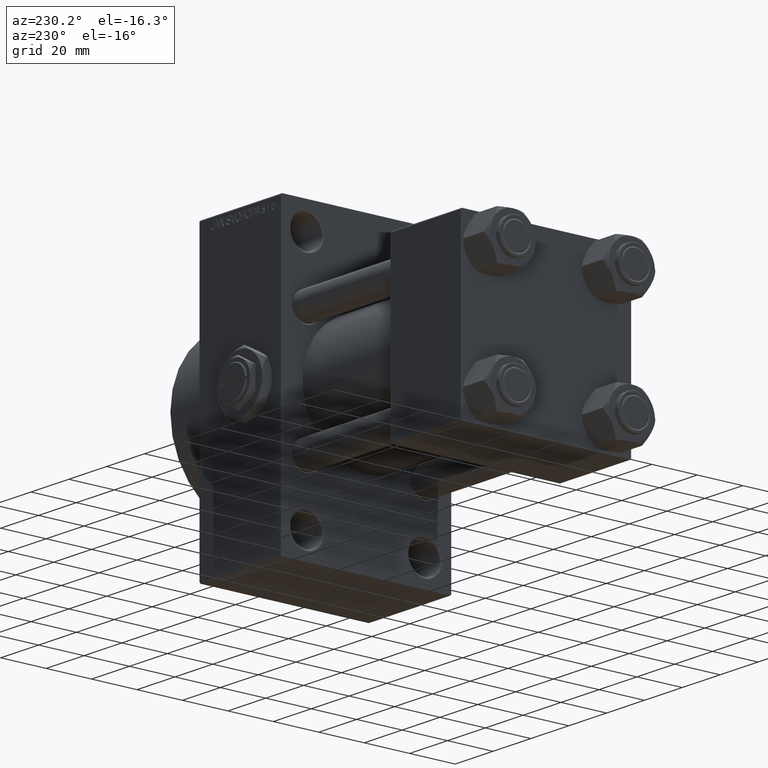
[diagram: clean part render]
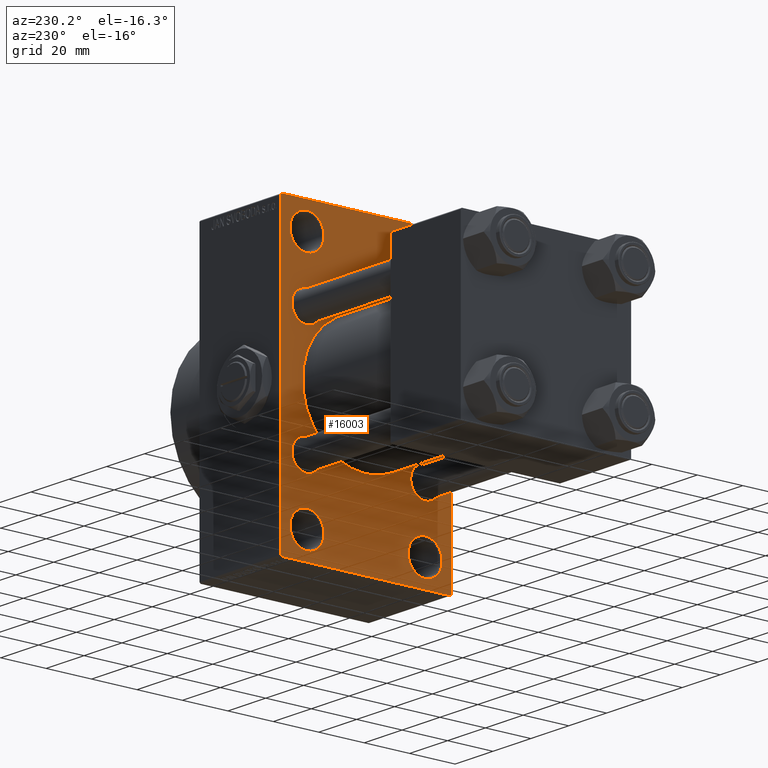
[diagram: same view with one face highlighted and labeled with its STEP entity id]
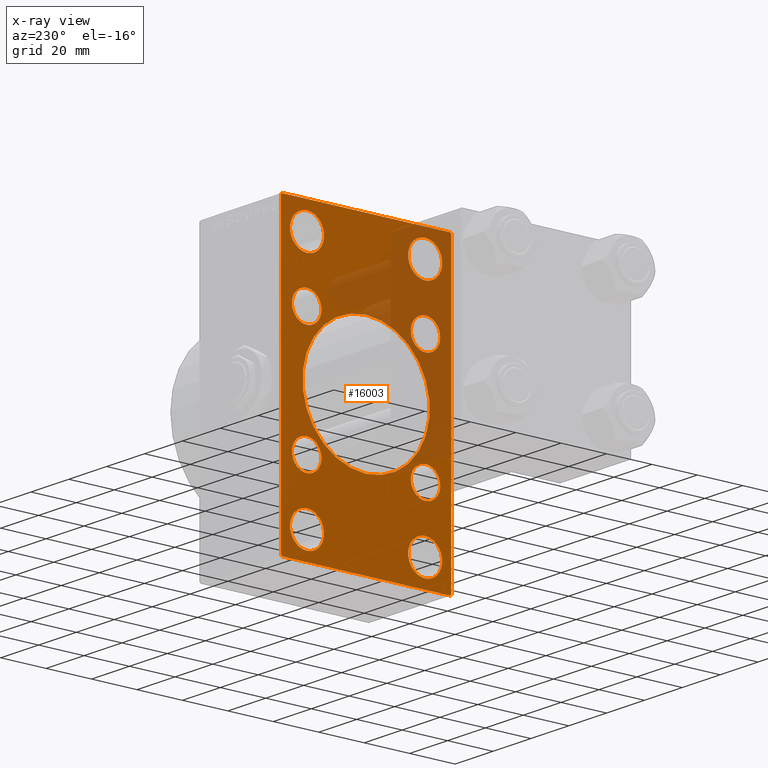
[diagram: x-ray of the same camera — body ghosted, the highlighted face saturated]
A machine part, auxiliary view. The second image highlights one B-rep face of the part: STEP entity #16003.
The next image is the same camera in x-ray: the body ghosted, the highlighted face saturated — about 28% of this face is hidden behind the body in this view.
In plain terms, the highlighted planar face has unit normal (-1, 0, 0).
Its self-contained STEP definition (entity closure, byte-faithful):
#53 = VECTOR ( 'NONE', #28085, 1000.000000000000000 ) ;
#256 = VERTEX_POINT ( 'NONE', #39624 ) ;
#260 = EDGE_CURVE ( 'NONE', #47775, #46320, #32732, .T. ) ;
#605 = CARTESIAN_POINT ( 'NONE',  ( 95.00000000000000000, 36.99999999999997158, 63.99999999999998579 ) ) ;
#879 = CARTESIAN_POINT ( 'NONE',  ( 95.00000000000000000, 26.00000000000000000, 45.00000000000001421 ) ) ;
#1202 = CIRCLE ( 'NONE', #28858, 28.00000000000000000 ) ;
#1237 = VERTEX_POINT ( 'NONE', #46578 ) ;
#1279 = CIRCLE ( 'NONE', #11536, 6.500000000000008882 ) ;
#1408 = LINE ( 'NONE', #16483, #43014 ) ;
#1551 = AXIS2_PLACEMENT_3D ( 'NONE', #2349, #33282, #6326 ) ;
#1718 = VERTEX_POINT ( 'NONE', #3659 ) ;
#1782 = CARTESIAN_POINT ( 'NONE',  ( 95.00000000000000000, -26.14999999999999147, 19.65000000000000213 ) ) ;
#1943 = CARTESIAN_POINT ( 'NONE',  ( 95.00000000000000000, -25.99999999999999645, -52.49999999999999289 ) ) ;
#2279 = ORIENTED_EDGE ( 'NONE', *, *, #15951, .T. ) ;
#2349 = CARTESIAN_POINT ( 'NONE',  ( 95.00000000000000000, 26.14999999999999858, -26.15000000000000213 ) ) ;
#2447 = FACE_BOUND ( 'NONE', #29401, .T. ) ;
#2469 = VERTEX_POINT ( 'NONE', #30130 ) ;
#2521 = CIRCLE ( 'NONE', #34917, 28.00000000000000000 ) ;
#2608 = CARTESIAN_POINT ( 'NONE',  ( 95.00000000000000000, -25.99999999999999645, -59.99999999999997158 ) ) ;
#2720 = CARTESIAN_POINT ( 'NONE',  ( 95.00000000000000000, 26.14999999999999858, 32.65000000000001990 ) ) ;
#2796 = VECTOR ( 'NONE', #47132, 1000.000000000000000 ) ;
#2830 = CIRCLE ( 'NONE', #26517, 6.500000000000008882 ) ;
#3112 = DIRECTION ( 'NONE',  ( 1.000000000000000000, 0.000000000000000000, 0.000000000000000000 ) ) ;
#3389 = EDGE_LOOP ( 'NONE', ( #20776, #26521 ) ) ;
#3659 = CARTESIAN_POINT ( 'NONE',  ( 95.00000000000000000, -25.99999999999999645, -45.00000000000001421 ) ) ;
#3706 = EDGE_LOOP ( 'NONE', ( #3770, #21929 ) ) ;
#3713 = AXIS2_PLACEMENT_3D ( 'NONE', #45599, #26044, #11678 ) ;
#3770 = ORIENTED_EDGE ( 'NONE', *, *, #260, .T. ) ;
#4095 = CARTESIAN_POINT ( 'NONE',  ( 95.00000000000000000, -36.99999999999995737, 63.99999999999997158 ) ) ;
#4280 = AXIS2_PLACEMENT_3D ( 'NONE', #1943, #47487, #9145 ) ;
#4480 = EDGE_CURVE ( 'NONE', #46320, #47775, #31008, .T. ) ;
#4580 = EDGE_CURVE ( 'NONE', #36691, #9636, #6104, .T. ) ;
#4712 = ORIENTED_EDGE ( 'NONE', *, *, #41251, .T. ) ;
#4739 = DIRECTION ( 'NONE',  ( 0.000000000000000000, 0.000000000000000000, 1.000000000000000000 ) ) ;
#4876 = CARTESIAN_POINT ( 'NONE',  ( 95.00000000000000000, 26.00000000000000000, 52.49999999999999289 ) ) ;
#4992 = ORIENTED_EDGE ( 'NONE', *, *, #12849, .F. ) ;
#5212 = EDGE_CURVE ( 'NONE', #37484, #32128, #42946, .T. ) ;
#5253 = AXIS2_PLACEMENT_3D ( 'NONE', #27813, #30776, #38713 ) ;
#5945 = DIRECTION ( 'NONE',  ( -0.000000000000000000, 0.000000000000000000, 1.000000000000000000 ) ) ;
#6104 = LINE ( 'NONE', #9324, #40574 ) ;
#6109 = EDGE_LOOP ( 'NONE', ( #39651, #18821 ) ) ;
#6326 = DIRECTION ( 'NONE',  ( 0.000000000000000000, 0.000000000000000000, 1.000000000000000000 ) ) ;
#6428 = EDGE_CURVE ( 'NONE', #1237, #10508, #29502, .T. ) ;
#6593 = DIRECTION ( 'NONE',  ( 0.000000000000000000, 0.000000000000000000, -1.000000000000000000 ) ) ;
#6694 = VERTEX_POINT ( 'NONE', #11906 ) ;
#6710 = ORIENTED_EDGE ( 'NONE', *, *, #9511, .T. ) ;
#6944 = EDGE_CURVE ( 'NONE', #256, #42656, #31117, .T. ) ;
#6948 = DIRECTION ( 'NONE',  ( 1.000000000000000000, -0.000000000000000000, 0.000000000000000000 ) ) ;
#7122 = EDGE_CURVE ( 'NONE', #1718, #34900, #40642, .T. ) ;
#7259 = CARTESIAN_POINT ( 'NONE',  ( 95.00000000000000000, -26.14999999999999147, -26.15000000000000924 ) ) ;
#7413 = ORIENTED_EDGE ( 'NONE', *, *, #35164, .T. ) ;
#7438 = EDGE_CURVE ( 'NONE', #28193, #42560, #1408, .T. ) ;
#7629 = AXIS2_PLACEMENT_3D ( 'NONE', #35640, #35150, #42832 ) ;
#8411 = AXIS2_PLACEMENT_3D ( 'NONE', #47997, #47747, #5945 ) ;
#8633 = CARTESIAN_POINT ( 'NONE',  ( 95.00000000000000000, -26.14999999999999147, 26.15000000000000924 ) ) ;
#9134 = DIRECTION ( 'NONE',  ( 0.000000000000000000, 0.000000000000000000, 1.000000000000000000 ) ) ;
#9145 = DIRECTION ( 'NONE',  ( 0.000000000000000000, 0.000000000000000000, 1.000000000000000000 ) ) ;
#9205 = CIRCLE ( 'NONE', #5253, 7.499999999999978684 ) ;
#9324 = CARTESIAN_POINT ( 'NONE',  ( 95.00000000000000000, 50.49999999999894840, 50.50000000000176215 ) ) ;
#9511 = EDGE_CURVE ( 'NONE', #6694, #38693, #41202, .T. ) ;
#9636 = VERTEX_POINT ( 'NONE', #19871 ) ;
#9706 = ORIENTED_EDGE ( 'NONE', *, *, #6944, .T. ) ;
#9886 = FACE_BOUND ( 'NONE', #3389, .T. ) ;
#9989 = CARTESIAN_POINT ( 'NONE',  ( 95.00000000000000000, -2.602085213965210642E-15, 0.000000000000000000 ) ) ;
#10043 = DIRECTION ( 'NONE',  ( 0.000000000000000000, 0.7071067811865672237, -0.7071067811865279218 ) ) ;
#10508 = VERTEX_POINT ( 'NONE', #48155 ) ;
#10729 = EDGE_CURVE ( 'NONE', #18591, #35975, #1202, .T. ) ;
#10734 = EDGE_CURVE ( 'NONE', #31404, #28193, #42934, .T. ) ;
#11061 = EDGE_CURVE ( 'NONE', #36691, #38693, #36405, .T. ) ;
#11536 = AXIS2_PLACEMENT_3D ( 'NONE', #33047, #48145, #40235 ) ;
#11570 = CARTESIAN_POINT ( 'NONE',  ( 95.00000000000000000, -25.99999999999999645, 59.99999999999997868 ) ) ;
#11678 = DIRECTION ( 'NONE',  ( 0.000000000000000000, 0.000000000000000000, 1.000000000000000000 ) ) ;
#11772 = EDGE_CURVE ( 'NONE', #32128, #37484, #2830, .T. ) ;
#11906 = CARTESIAN_POINT ( 'NONE',  ( 95.00000000000000000, -37.49999999999999289, 63.49999999999994316 ) ) ;
#12164 = EDGE_CURVE ( 'NONE', #17586, #31769, #1279, .T. ) ;
#12347 = EDGE_CURVE ( 'NONE', #42656, #256, #9205, .T. ) ;
#12849 = EDGE_CURVE ( 'NONE', #6694, #42560, #13608, .T. ) ;
#12887 = ORIENTED_EDGE ( 'NONE', *, *, #10729, .T. ) ;
#12941 = AXIS2_PLACEMENT_3D ( 'NONE', #21022, #13839, #36384 ) ;
#13161 = AXIS2_PLACEMENT_3D ( 'NONE', #25208, #40816, #14059 ) ;
#13163 = VECTOR ( 'NONE', #16602, 1000.000000000000000 ) ;
#13428 = ORIENTED_EDGE ( 'NONE', *, *, #7122, .T. ) ;
#13568 = CARTESIAN_POINT ( 'NONE',  ( 95.00000000000000000, -37.49999999999999289, -63.49999999999997158 ) ) ;
#13608 = LINE ( 'NONE', #28722, #13163 ) ;
#13714 = DIRECTION ( 'NONE',  ( 1.000000000000000000, -0.000000000000000000, 0.000000000000000000 ) ) ;
#13839 = DIRECTION ( 'NONE',  ( 1.000000000000000000, -0.000000000000000000, 0.000000000000000000 ) ) ;
#13853 = CARTESIAN_POINT ( 'NONE',  ( 95.00000000000000000, 50.49999999999948841, -50.50000000000088107 ) ) ;
#13862 = ORIENTED_EDGE ( 'NONE', *, *, #11061, .F. ) ;
#14059 = DIRECTION ( 'NONE',  ( 0.000000000000000000, 0.000000000000000000, 1.000000000000000000 ) ) ;
#14724 = EDGE_CURVE ( 'NONE', #30735, #42255, #46399, .T. ) ;
#15078 = ORIENTED_EDGE ( 'NONE', *, *, #4580, .T. ) ;
#15699 = CARTESIAN_POINT ( 'NONE',  ( 95.00000000000000000, -26.14999999999999147, 32.65000000000001990 ) ) ;
#15775 = EDGE_LOOP ( 'NONE', ( #2279, #44843 ) ) ;
#15951 = EDGE_CURVE ( 'NONE', #10508, #1237, #44771, .T. ) ;
#16003 = ADVANCED_FACE ( 'NONE', ( #21241, #33140, #44531, #17278, #37093, #40086, #2447, #9886, #36850, #48238 ), #17522, .T. ) ;
#16012 = EDGE_CURVE ( 'NONE', #31769, #17586, #23392, .T. ) ;
#16483 = CARTESIAN_POINT ( 'NONE',  ( 95.00000000000000000, -50.49999999999945999, -50.50000000000086686 ) ) ;
#16541 = CARTESIAN_POINT ( 'NONE',  ( 95.00000000000000000, 26.14999999999999858, -32.65000000000001279 ) ) ;
#16602 = DIRECTION ( 'NONE',  ( 0.000000000000000000, 0.000000000000000000, -1.000000000000000000 ) ) ;
#17278 = FACE_BOUND ( 'NONE', #3706, .T. ) ;
#17386 = DIRECTION ( 'NONE',  ( 1.000000000000000000, 0.000000000000000000, 0.000000000000000000 ) ) ;
#17427 = CARTESIAN_POINT ( 'NONE',  ( 95.00000000000000000, 26.00000000000000000, -52.49999999999999289 ) ) ;
#17522 = PLANE ( 'NONE',  #8411 ) ;
#17586 = VERTEX_POINT ( 'NONE', #2720 ) ;
#18023 = CIRCLE ( 'NONE', #25162, 6.500000000000008882 ) ;
#18045 = DIRECTION ( 'NONE',  ( 0.000000000000000000, 0.000000000000000000, 1.000000000000000000 ) ) ;
#18591 = VERTEX_POINT ( 'NONE', #40669 ) ;
#18821 = ORIENTED_EDGE ( 'NONE', *, *, #16012, .T. ) ;
#19298 = ORIENTED_EDGE ( 'NONE', *, *, #26362, .T. ) ;
#19869 = ORIENTED_EDGE ( 'NONE', *, *, #14724, .T. ) ;
#19871 = CARTESIAN_POINT ( 'NONE',  ( 95.00000000000000000, 37.50000000000000000, 63.49999999999998579 ) ) ;
#19943 = DIRECTION ( 'NONE',  ( 1.000000000000000000, -0.000000000000000000, 0.000000000000000000 ) ) ;
#20302 = DIRECTION ( 'NONE',  ( 0.000000000000000000, 0.000000000000000000, 1.000000000000000000 ) ) ;
#20776 = ORIENTED_EDGE ( 'NONE', *, *, #5212, .T. ) ;
#20865 = CARTESIAN_POINT ( 'NONE',  ( 95.00000000000000000, 8.269258236473776482E-16, -28.00000000000000000 ) ) ;
#21022 = CARTESIAN_POINT ( 'NONE',  ( 95.00000000000000000, 26.00000000000000000, 52.49999999999999289 ) ) ;
#21080 = ORIENTED_EDGE ( 'NONE', *, *, #47127, .T. ) ;
#21241 = FACE_BOUND ( 'NONE', #33939, .T. ) ;
#21255 = EDGE_CURVE ( 'NONE', #42255, #30735, #18023, .T. ) ;
#21272 = CIRCLE ( 'NONE', #1551, 6.500000000000008882 ) ;
#21637 = AXIS2_PLACEMENT_3D ( 'NONE', #36884, #6948, #18045 ) ;
#21929 = ORIENTED_EDGE ( 'NONE', *, *, #4480, .T. ) ;
#21978 = CARTESIAN_POINT ( 'NONE',  ( 95.00000000000000000, 26.14999999999999858, -19.64999999999999503 ) ) ;
#22091 = CARTESIAN_POINT ( 'NONE',  ( 95.00000000000000000, 26.14999999999999858, 19.64999999999999147 ) ) ;
#22317 = DIRECTION ( 'NONE',  ( 1.000000000000000000, -0.000000000000000000, 0.000000000000000000 ) ) ;
#23392 = CIRCLE ( 'NONE', #13161, 6.500000000000008882 ) ;
#23524 = CARTESIAN_POINT ( 'NONE',  ( 95.00000000000000000, -26.14999999999999147, -26.15000000000000924 ) ) ;
#23778 = DIRECTION ( 'NONE',  ( 1.000000000000000000, -0.000000000000000000, 0.000000000000000000 ) ) ;
#23890 = EDGE_LOOP ( 'NONE', ( #12887, #4712 ) ) ;
#24018 = CARTESIAN_POINT ( 'NONE',  ( 95.00000000000000000, -25.99999999999999645, -52.49999999999999289 ) ) ;
#24194 = EDGE_CURVE ( 'NONE', #43161, #35437, #21272, .T. ) ;
#24261 = DIRECTION ( 'NONE',  ( 1.000000000000000000, -0.000000000000000000, 0.000000000000000000 ) ) ;
#24659 = CARTESIAN_POINT ( 'NONE',  ( 95.00000000000000000, -26.14999999999999147, -32.65000000000001990 ) ) ;
#25066 = DIRECTION ( 'NONE',  ( 0.000000000000000000, 0.000000000000000000, -1.000000000000000000 ) ) ;
#25162 = AXIS2_PLACEMENT_3D ( 'NONE', #8633, #31401, #9134 ) ;
#25208 = CARTESIAN_POINT ( 'NONE',  ( 95.00000000000000000, 26.14999999999999858, 26.15000000000000213 ) ) ;
#25851 = DIRECTION ( 'NONE',  ( -0.000000000000000000, 0.7071067811865524577, 0.7071067811865426878 ) ) ;
#25866 = ORIENTED_EDGE ( 'NONE', *, *, #12347, .T. ) ;
#25880 = CARTESIAN_POINT ( 'NONE',  ( 95.00000000000000000, 26.14999999999999858, -26.15000000000000213 ) ) ;
#26044 = DIRECTION ( 'NONE',  ( 1.000000000000000000, -0.000000000000000000, 0.000000000000000000 ) ) ;
#26193 = EDGE_CURVE ( 'NONE', #35437, #43161, #26893, .T. ) ;
#26362 = EDGE_CURVE ( 'NONE', #9636, #2469, #32527, .T. ) ;
#26517 = AXIS2_PLACEMENT_3D ( 'NONE', #23524, #23778, #4739 ) ;
#26521 = ORIENTED_EDGE ( 'NONE', *, *, #11772, .T. ) ;
#26893 = CIRCLE ( 'NONE', #37955, 6.500000000000008882 ) ;
#27033 = EDGE_LOOP ( 'NONE', ( #36609, #31155, #4992, #6710, #13862, #15078, #19298, #7413 ) ) ;
#27813 = CARTESIAN_POINT ( 'NONE',  ( 95.00000000000000000, -25.99999999999999645, 52.50000000000000000 ) ) ;
#28085 = DIRECTION ( 'NONE',  ( 0.000000000000000000, -5.421010862427522170E-17, -1.000000000000000000 ) ) ;
#28193 = VERTEX_POINT ( 'NONE', #36909 ) ;
#28722 = CARTESIAN_POINT ( 'NONE',  ( 95.00000000000000000, -37.49999999999999289, 63.99999999999997158 ) ) ;
#28830 = DIRECTION ( 'NONE',  ( 0.000000000000000000, 0.000000000000000000, 1.000000000000000000 ) ) ;
#28858 = AXIS2_PLACEMENT_3D ( 'NONE', #9989, #17386, #25066 ) ;
#28889 = VECTOR ( 'NONE', #33430, 1000.000000000000000 ) ;
#28966 = LINE ( 'NONE', #13853, #47479 ) ;
#29401 = EDGE_LOOP ( 'NONE', ( #34880, #34728 ) ) ;
#29502 = CIRCLE ( 'NONE', #39796, 7.499999999999978684 ) ;
#29937 = ORIENTED_EDGE ( 'NONE', *, *, #21255, .T. ) ;
#30078 = DIRECTION ( 'NONE',  ( 0.000000000000000000, 0.000000000000000000, 1.000000000000000000 ) ) ;
#30130 = CARTESIAN_POINT ( 'NONE',  ( 95.00000000000000000, 37.49999999999999289, -63.50000000000001421 ) ) ;
#30735 = VERTEX_POINT ( 'NONE', #15699 ) ;
#30776 = DIRECTION ( 'NONE',  ( 1.000000000000000000, -0.000000000000000000, 0.000000000000000000 ) ) ;
#31008 = CIRCLE ( 'NONE', #31807, 7.499999999999978684 ) ;
#31117 = CIRCLE ( 'NONE', #21637, 7.499999999999978684 ) ;
#31155 = ORIENTED_EDGE ( 'NONE', *, *, #7438, .T. ) ;
#31401 = DIRECTION ( 'NONE',  ( 1.000000000000000000, -0.000000000000000000, 0.000000000000000000 ) ) ;
#31404 = VERTEX_POINT ( 'NONE', #40749 ) ;
#31627 = EDGE_LOOP ( 'NONE', ( #19869, #29937 ) ) ;
#31769 = VERTEX_POINT ( 'NONE', #22091 ) ;
#31807 = AXIS2_PLACEMENT_3D ( 'NONE', #4876, #19943, #35056 ) ;
#31879 = EDGE_LOOP ( 'NONE', ( #13428, #21080 ) ) ;
#32128 = VERTEX_POINT ( 'NONE', #24659 ) ;
#32527 = LINE ( 'NONE', #39242, #53 ) ;
#32640 = CARTESIAN_POINT ( 'NONE',  ( 95.00000000000000000, -26.14999999999999147, -19.65000000000000213 ) ) ;
#32732 = CIRCLE ( 'NONE', #12941, 7.499999999999978684 ) ;
#32767 = CIRCLE ( 'NONE', #45412, 7.499999999999978684 ) ;
#33047 = CARTESIAN_POINT ( 'NONE',  ( 95.00000000000000000, 26.14999999999999858, 26.15000000000000213 ) ) ;
#33140 = FACE_BOUND ( 'NONE', #31879, .T. ) ;
#33282 = DIRECTION ( 'NONE',  ( 1.000000000000000000, -0.000000000000000000, 0.000000000000000000 ) ) ;
#33430 = DIRECTION ( 'NONE',  ( 0.000000000000000000, -1.000000000000000000, -1.850371707708594563E-16 ) ) ;
#33939 = EDGE_LOOP ( 'NONE', ( #25866, #9706 ) ) ;
#34196 = DIRECTION ( 'NONE',  ( 0.000000000000000000, 0.000000000000000000, 1.000000000000000000 ) ) ;
#34728 = ORIENTED_EDGE ( 'NONE', *, *, #26193, .T. ) ;
#34880 = ORIENTED_EDGE ( 'NONE', *, *, #24194, .T. ) ;
#34900 = VERTEX_POINT ( 'NONE', #2608 ) ;
#34917 = AXIS2_PLACEMENT_3D ( 'NONE', #46525, #3112, #6593 ) ;
#35056 = DIRECTION ( 'NONE',  ( 0.000000000000000000, 0.000000000000000000, 1.000000000000000000 ) ) ;
#35150 = DIRECTION ( 'NONE',  ( 1.000000000000000000, -0.000000000000000000, 0.000000000000000000 ) ) ;
#35164 = EDGE_CURVE ( 'NONE', #2469, #31404, #28966, .T. ) ;
#35437 = VERTEX_POINT ( 'NONE', #16541 ) ;
#35640 = CARTESIAN_POINT ( 'NONE',  ( 95.00000000000000000, 26.00000000000000000, -52.49999999999999289 ) ) ;
#35804 = AXIS2_PLACEMENT_3D ( 'NONE', #7259, #22317, #34196 ) ;
#35975 = VERTEX_POINT ( 'NONE', #20865 ) ;
#36384 = DIRECTION ( 'NONE',  ( 0.000000000000000000, 0.000000000000000000, 1.000000000000000000 ) ) ;
#36405 = LINE ( 'NONE', #40132, #28889 ) ;
#36609 = ORIENTED_EDGE ( 'NONE', *, *, #10734, .T. ) ;
#36641 = DIRECTION ( 'NONE',  ( -0.000000000000000000, -0.7071067811865573427, -0.7071067811865378028 ) ) ;
#36691 = VERTEX_POINT ( 'NONE', #605 ) ;
#36850 = FACE_BOUND ( 'NONE', #23890, .T. ) ;
#36884 = CARTESIAN_POINT ( 'NONE',  ( 95.00000000000000000, -25.99999999999999645, 52.50000000000000000 ) ) ;
#36909 = CARTESIAN_POINT ( 'NONE',  ( 95.00000000000000000, -36.99999999999993605, -64.00000000000001421 ) ) ;
#37093 = FACE_BOUND ( 'NONE', #31627, .T. ) ;
#37484 = VERTEX_POINT ( 'NONE', #32640 ) ;
#37955 = AXIS2_PLACEMENT_3D ( 'NONE', #25880, #40990, #30078 ) ;
#38330 = VECTOR ( 'NONE', #25851, 1000.000000000000000 ) ;
#38693 = VERTEX_POINT ( 'NONE', #4095 ) ;
#38713 = DIRECTION ( 'NONE',  ( 0.000000000000000000, 0.000000000000000000, 1.000000000000000000 ) ) ;
#39242 = CARTESIAN_POINT ( 'NONE',  ( 95.00000000000000000, 37.50000000000000000, 63.99999999999998579 ) ) ;
#39624 = CARTESIAN_POINT ( 'NONE',  ( 95.00000000000000000, -25.99999999999999645, 45.00000000000002132 ) ) ;
#39651 = ORIENTED_EDGE ( 'NONE', *, *, #12164, .T. ) ;
#39796 = AXIS2_PLACEMENT_3D ( 'NONE', #17427, #13714, #28830 ) ;
#40086 = FACE_BOUND ( 'NONE', #6109, .T. ) ;
#40132 = CARTESIAN_POINT ( 'NONE',  ( 95.00000000000000000, 37.50000000000000000, 63.99999999999998579 ) ) ;
#40235 = DIRECTION ( 'NONE',  ( 0.000000000000000000, 0.000000000000000000, 1.000000000000000000 ) ) ;
#40574 = VECTOR ( 'NONE', #10043, 1000.000000000000000 ) ;
#40642 = CIRCLE ( 'NONE', #4280, 7.499999999999978684 ) ;
#40669 = CARTESIAN_POINT ( 'NONE',  ( 95.00000000000000000, -2.602085213965210642E-15, 28.00000000000000000 ) ) ;
#40749 = CARTESIAN_POINT ( 'NONE',  ( 95.00000000000000000, 36.99999999999999289, -64.00000000000000000 ) ) ;
#40816 = DIRECTION ( 'NONE',  ( 1.000000000000000000, -0.000000000000000000, 0.000000000000000000 ) ) ;
#40903 = CARTESIAN_POINT ( 'NONE',  ( 95.00000000000000000, 26.00000000000000000, 59.99999999999997158 ) ) ;
#40990 = DIRECTION ( 'NONE',  ( 1.000000000000000000, -0.000000000000000000, 0.000000000000000000 ) ) ;
#41202 = LINE ( 'NONE', #48632, #38330 ) ;
#41251 = EDGE_CURVE ( 'NONE', #35975, #18591, #2521, .T. ) ;
#42255 = VERTEX_POINT ( 'NONE', #1782 ) ;
#42499 = DIRECTION ( 'NONE',  ( 0.000000000000000000, -0.7071067811865574537, 0.7071067811865376918 ) ) ;
#42560 = VERTEX_POINT ( 'NONE', #13568 ) ;
#42656 = VERTEX_POINT ( 'NONE', #11570 ) ;
#42832 = DIRECTION ( 'NONE',  ( 0.000000000000000000, 0.000000000000000000, 1.000000000000000000 ) ) ;
#42934 = LINE ( 'NONE', #47610, #2796 ) ;
#42946 = CIRCLE ( 'NONE', #35804, 6.500000000000008882 ) ;
#43014 = VECTOR ( 'NONE', #42499, 999.9999999999998863 ) ;
#43161 = VERTEX_POINT ( 'NONE', #21978 ) ;
#44531 = FACE_BOUND ( 'NONE', #15775, .T. ) ;
#44771 = CIRCLE ( 'NONE', #7629, 7.499999999999978684 ) ;
#44843 = ORIENTED_EDGE ( 'NONE', *, *, #6428, .T. ) ;
#45412 = AXIS2_PLACEMENT_3D ( 'NONE', #24018, #24261, #20302 ) ;
#45599 = CARTESIAN_POINT ( 'NONE',  ( 95.00000000000000000, -26.14999999999999147, 26.15000000000000924 ) ) ;
#46320 = VERTEX_POINT ( 'NONE', #879 ) ;
#46399 = CIRCLE ( 'NONE', #3713, 6.500000000000008882 ) ;
#46525 = CARTESIAN_POINT ( 'NONE',  ( 95.00000000000000000, -2.602085213965210642E-15, 0.000000000000000000 ) ) ;
#46578 = CARTESIAN_POINT ( 'NONE',  ( 95.00000000000000000, 26.00000000000000000, -59.99999999999997158 ) ) ;
#47127 = EDGE_CURVE ( 'NONE', #34900, #1718, #32767, .T. ) ;
#47132 = DIRECTION ( 'NONE',  ( 0.000000000000000000, -1.000000000000000000, -1.850371707708594563E-16 ) ) ;
#47479 = VECTOR ( 'NONE', #36641, 1000.000000000000000 ) ;
#47487 = DIRECTION ( 'NONE',  ( 1.000000000000000000, -0.000000000000000000, 0.000000000000000000 ) ) ;
#47610 = CARTESIAN_POINT ( 'NONE',  ( 95.00000000000000000, 37.49999999999999289, -64.00000000000000000 ) ) ;
#47747 = DIRECTION ( 'NONE',  ( -1.000000000000000000, 0.000000000000000000, -0.000000000000000000 ) ) ;
#47775 = VERTEX_POINT ( 'NONE', #40903 ) ;
#47997 = CARTESIAN_POINT ( 'NONE',  ( 95.00000000000000000, 0.000000000000000000, 0.000000000000000000 ) ) ;
#48145 = DIRECTION ( 'NONE',  ( 1.000000000000000000, -0.000000000000000000, 0.000000000000000000 ) ) ;
#48155 = CARTESIAN_POINT ( 'NONE',  ( 95.00000000000000000, 26.00000000000000000, -45.00000000000001421 ) ) ;
#48238 = FACE_OUTER_BOUND ( 'NONE', #27033, .T. ) ;
#48632 = CARTESIAN_POINT ( 'NONE',  ( 95.00000000000000000, -50.49999999999970868, 50.50000000000040501 ) ) ;